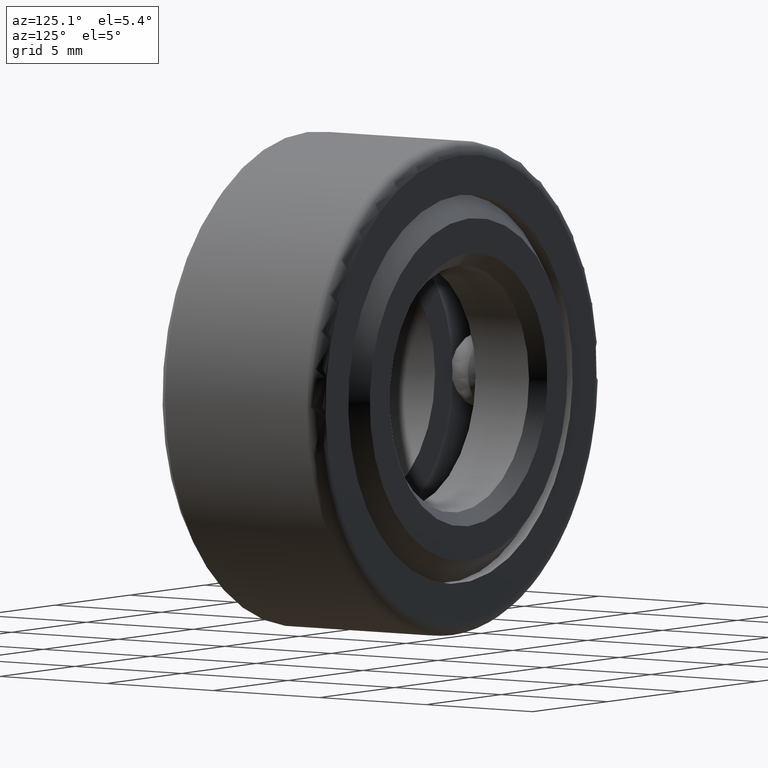
[diagram: clean part render]
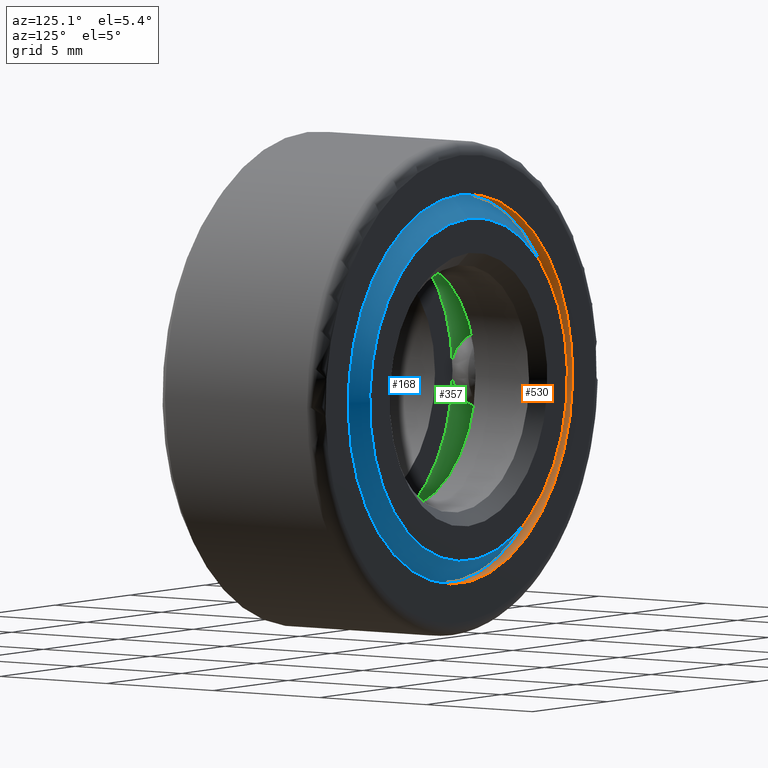
[diagram: same view with three faces highlighted in distinct colors, each labeled with its STEP entity id]
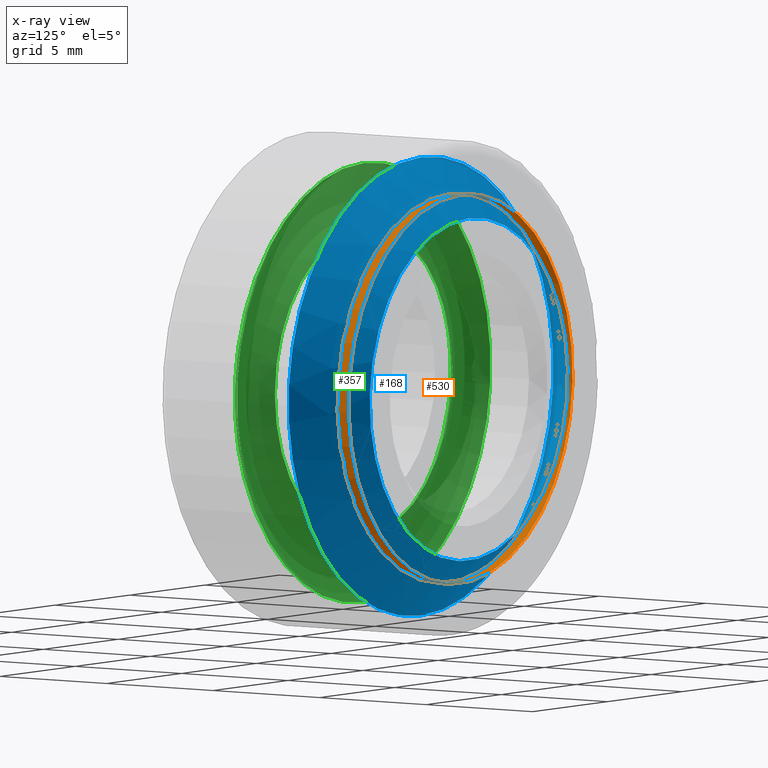
[diagram: x-ray of the same camera — body ghosted, the three highlighted faces saturated]
A machine part, auxiliary view with three faces highlighted in distinct colors.
The next image is the same camera in x-ray (body ghosted, the three faces saturated) — at least one of them is partly hidden behind the body in this view.
Their STEP definitions:

[orange] entity #530 — the highlighted cylindrical surface (bore or boss wall) has radius 7.493 mm, axis along (-0, 1, -0).
#25 = EDGE_CURVE ( 'NONE', #82, #82, #116, .T. ) ;
#82 = VERTEX_POINT ( 'NONE', #196 ) ;
#96 = DIRECTION ( 'NONE',  ( 0.0000000000000000000, 0.0000000000000000000, 1.000000000000000000 ) ) ;
#116 = CIRCLE ( 'NONE', #155, 0.2950000000000000400 ) ;
#139 = CARTESIAN_POINT ( 'NONE',  ( 0.0000000000000000000, 0.2774999999999999700, 0.0000000000000000000 ) ) ;
#154 = CARTESIAN_POINT ( 'NONE',  ( 0.0000000000000000000, 0.2774999999999999700, 0.2949999999999999800 ) ) ;
#155 = AXIS2_PLACEMENT_3D ( 'NONE', #171, #539, #449 ) ;
#163 = AXIS2_PLACEMENT_3D ( 'NONE', #139, #508, #548 ) ;
#171 = CARTESIAN_POINT ( 'NONE',  ( 0.0000000000000000000, 0.2974999999999999900, 0.0000000000000000000 ) ) ;
#196 = CARTESIAN_POINT ( 'NONE',  ( 0.0000000000000000000, 0.2974999999999999900, 0.2950000000000000400 ) ) ;
#224 = ORIENTED_EDGE ( 'NONE', *, *, #244, .F. ) ;
#244 = EDGE_CURVE ( 'NONE', #287, #287, #481, .T. ) ;
#287 = VERTEX_POINT ( 'NONE', #154 ) ;
#288 = FACE_OUTER_BOUND ( 'NONE', #325, .T. ) ;
#295 = ORIENTED_EDGE ( 'NONE', *, *, #25, .T. ) ;
#325 = EDGE_LOOP ( 'NONE', ( #224 ) ) ;
#362 = CYLINDRICAL_SURFACE ( 'NONE', #386, 0.2949999999999999800 ) ;
#377 = DIRECTION ( 'NONE',  ( -0.0000000000000000000, 1.000000000000000000, -0.0000000000000000000 ) ) ;
#386 = AXIS2_PLACEMENT_3D ( 'NONE', #461, #377, #96 ) ;
#387 = FACE_OUTER_BOUND ( 'NONE', #576, .T. ) ;
#449 = DIRECTION ( 'NONE',  ( 0.0000000000000000000, 0.0000000000000000000, 1.000000000000000000 ) ) ;
#461 = CARTESIAN_POINT ( 'NONE',  ( 0.0000000000000000000, 0.0000000000000000000, 0.0000000000000000000 ) ) ;
#481 = CIRCLE ( 'NONE', #163, 0.2949999999999999800 ) ;
#508 = DIRECTION ( 'NONE',  ( -0.0000000000000000000, 1.000000000000000000, -0.0000000000000000000 ) ) ;
#530 = ADVANCED_FACE ( 'NONE', ( #288, #387 ), #362, .F. ) ;
#539 = DIRECTION ( 'NONE',  ( -0.0000000000000000000, 1.000000000000000000, -0.0000000000000000000 ) ) ;
#548 = DIRECTION ( 'NONE',  ( 0.0000000000000000000, 0.0000000000000000000, 1.000000000000000000 ) ) ;
#576 = EDGE_LOOP ( 'NONE', ( #295 ) ) ;

[blue] entity #168 — the highlighted conical surface has half-angle 45 deg.
#16 = CIRCLE ( 'NONE', #209, 0.2599999999999998400 ) ;
#35 = EDGE_LOOP ( 'NONE', ( #190 ) ) ;
#45 = DIRECTION ( 'NONE',  ( 0.0000000000000000000, 0.0000000000000000000, 1.000000000000000000 ) ) ;
#49 = CARTESIAN_POINT ( 'NONE',  ( 0.0000000000000000000, 0.3125000000000000000, 0.0000000000000000000 ) ) ;
#60 = VERTEX_POINT ( 'NONE', #383 ) ;
#66 = AXIS2_PLACEMENT_3D ( 'NONE', #321, #410, #373 ) ;
#168 = ADVANCED_FACE ( 'NONE', ( #500, #600 ), #229, .T. ) ;
#173 = ORIENTED_EDGE ( 'NONE', *, *, #534, .T. ) ;
#190 = ORIENTED_EDGE ( 'NONE', *, *, #433, .F. ) ;
#209 = AXIS2_PLACEMENT_3D ( 'NONE', #49, #382, #272 ) ;
#229 = CONICAL_SURFACE ( 'NONE', #66, 0.2599999999999998400, 0.7853981633974495000 ) ;
#238 = CARTESIAN_POINT ( 'NONE',  ( 0.0000000000000000000, 0.3125000000000000000, 0.2599999999999998400 ) ) ;
#272 = DIRECTION ( 'NONE',  ( 0.0000000000000000000, 0.0000000000000000000, 1.000000000000000000 ) ) ;
#321 = CARTESIAN_POINT ( 'NONE',  ( 0.0000000000000000000, 0.3125000000000000000, 0.0000000000000000000 ) ) ;
#373 = DIRECTION ( 'NONE',  ( 0.0000000000000000000, 0.0000000000000000000, -1.000000000000000000 ) ) ;
#382 = DIRECTION ( 'NONE',  ( -0.0000000000000000000, 1.000000000000000000, -0.0000000000000000000 ) ) ;
#383 = CARTESIAN_POINT ( 'NONE',  ( 0.0000000000000000000, 0.2245000000000000900, 0.3479999999999999800 ) ) ;
#399 = VERTEX_POINT ( 'NONE', #238 ) ;
#404 = EDGE_LOOP ( 'NONE', ( #173 ) ) ;
#410 = DIRECTION ( 'NONE',  ( 0.0000000000000000000, -1.000000000000000000, 0.0000000000000000000 ) ) ;
#421 = CARTESIAN_POINT ( 'NONE',  ( 0.0000000000000000000, 0.2245000000000000900, 0.0000000000000000000 ) ) ;
#433 = EDGE_CURVE ( 'NONE', #399, #399, #16, .T. ) ;
#500 = FACE_OUTER_BOUND ( 'NONE', #404, .T. ) ;
#532 = CIRCLE ( 'NONE', #546, 0.3479999999999999800 ) ;
#534 = EDGE_CURVE ( 'NONE', #60, #60, #532, .T. ) ;
#546 = AXIS2_PLACEMENT_3D ( 'NONE', #421, #602, #45 ) ;
#600 = FACE_BOUND ( 'NONE', #35, .T. ) ;
#602 = DIRECTION ( 'NONE',  ( -0.0000000000000000000, 1.000000000000000000, -0.0000000000000000000 ) ) ;

[green] entity #357 — the highlighted toroidal blend (fillet) surface has major radius 7.2009 mm and minor (blend) radius 1.5875 mm.
#10 = CARTESIAN_POINT ( 'NONE',  ( 0.0000000000000000000, 0.1187499999999999800, 0.3335000000000000200 ) ) ;
#33 = FACE_OUTER_BOUND ( 'NONE', #277, .T. ) ;
#51 = AXIS2_PLACEMENT_3D ( 'NONE', #235, #53, #57 ) ;
#53 = DIRECTION ( 'NONE',  ( -0.0000000000000000000, 1.000000000000000000, -0.0000000000000000000 ) ) ;
#57 = DIRECTION ( 'NONE',  ( 0.0000000000000000000, 0.0000000000000000000, 1.000000000000000000 ) ) ;
#99 = EDGE_LOOP ( 'NONE', ( #194 ) ) ;
#128 = DIRECTION ( 'NONE',  ( -0.0000000000000000000, 1.000000000000000000, -0.0000000000000000000 ) ) ;
#152 = TOROIDAL_SURFACE ( 'NONE', #505, 0.2834999999999999700, 0.06250000000000001400 ) ;
#194 = ORIENTED_EDGE ( 'NONE', *, *, #579, .F. ) ;
#198 = CARTESIAN_POINT ( 'NONE',  ( 0.0000000000000000000, 0.1187499999999999900, 0.2334999999999999900 ) ) ;
#218 = DIRECTION ( 'NONE',  ( -0.0000000000000000000, 1.000000000000000000, -0.0000000000000000000 ) ) ;
#235 = CARTESIAN_POINT ( 'NONE',  ( 0.0000000000000000000, 0.1187499999999999900, 0.0000000000000000000 ) ) ;
#239 = AXIS2_PLACEMENT_3D ( 'NONE', #450, #218, #313 ) ;
#277 = EDGE_LOOP ( 'NONE', ( #606 ) ) ;
#280 = FACE_OUTER_BOUND ( 'NONE', #99, .T. ) ;
#313 = DIRECTION ( 'NONE',  ( 0.0000000000000000000, 0.0000000000000000000, 1.000000000000000000 ) ) ;
#357 = ADVANCED_FACE ( 'NONE', ( #280, #33 ), #152, .F. ) ;
#358 = CARTESIAN_POINT ( 'NONE',  ( 0.0000000000000000000, 0.1562500000000000000, 0.0000000000000000000 ) ) ;
#366 = EDGE_CURVE ( 'NONE', #409, #409, #519, .T. ) ;
#409 = VERTEX_POINT ( 'NONE', #10 ) ;
#450 = CARTESIAN_POINT ( 'NONE',  ( 0.0000000000000000000, 0.1187499999999999800, 0.0000000000000000000 ) ) ;
#455 = VERTEX_POINT ( 'NONE', #198 ) ;
#491 = CIRCLE ( 'NONE', #51, 0.2334999999999999900 ) ;
#505 = AXIS2_PLACEMENT_3D ( 'NONE', #358, #128, #580 ) ;
#519 = CIRCLE ( 'NONE', #239, 0.3335000000000000200 ) ;
#579 = EDGE_CURVE ( 'NONE', #455, #455, #491, .T. ) ;
#580 = DIRECTION ( 'NONE',  ( 0.0000000000000000000, 0.0000000000000000000, 1.000000000000000000 ) ) ;
#606 = ORIENTED_EDGE ( 'NONE', *, *, #366, .T. ) ;